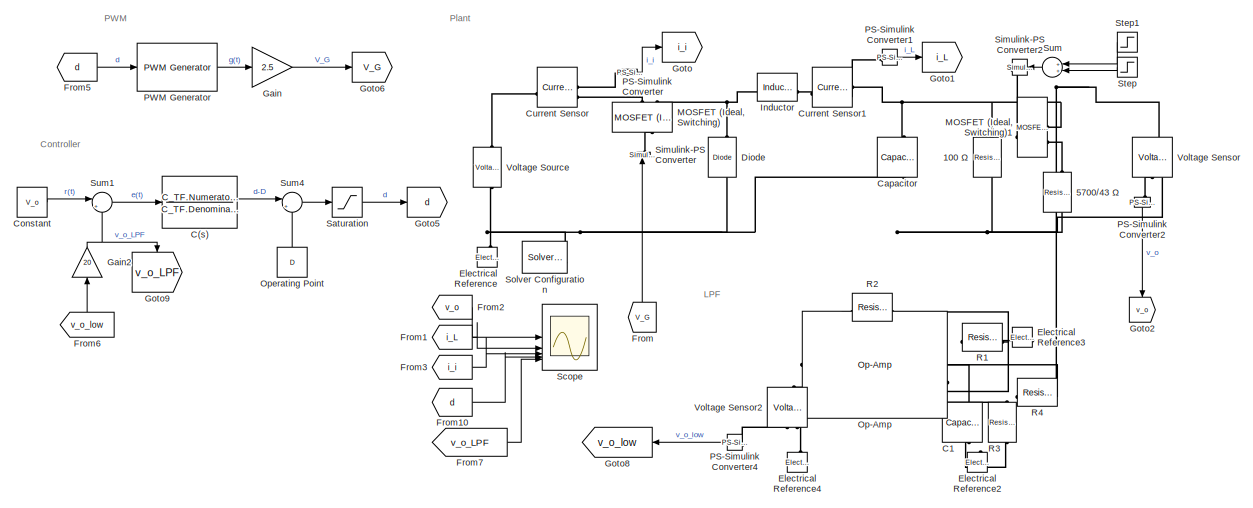
[diagram: root canvas - part 1/2, full width, top band]
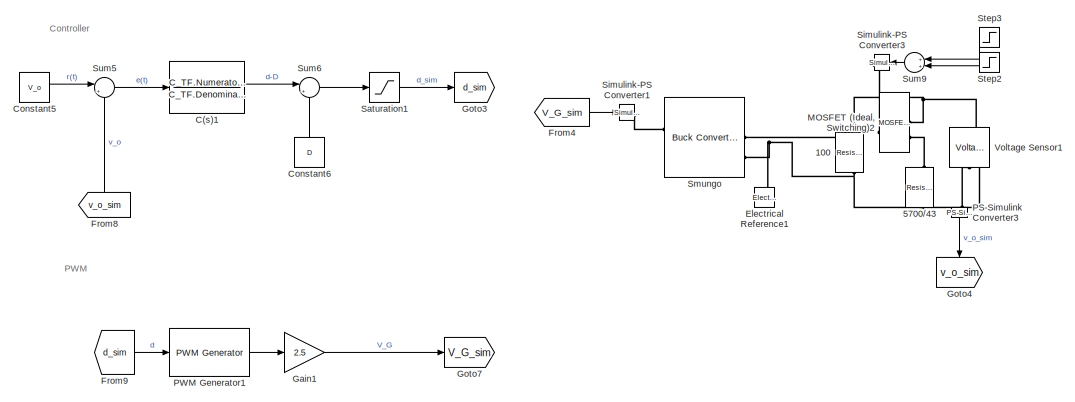
[diagram: root canvas - part 2/2, full width, bottom band]
MODEL slx_f3b75ae2d87d
KIND model
CONFIG AbsTol = auto
CONFIG EnableMultiTasking = off
CONFIG FixedStep = auto
CONFIG MaxStep = T_sw/100
CONFIG MinStep = auto
CONFIG RelTol = 1e-3
CONFIG SampleTimeConstraint = Unconstrained
CONFIG SolverName = VariableStepAuto
CONFIG StartTime = 0.0
CONFIG StopTime = 1.2
BLOCK [Reference] 100  REF=fl_lib/Electrical/Electrical Elements/Resistor
  Commented = on
  NameLocation = left
  SourceBlock = fl_lib/Electrical/Electrical Elements/Resistor
  SourceType = Resistor
BLOCK [Reference] 100 Ω  REF=fl_lib/Electrical/Electrical Elements/Resistor
  NameLocation = left
  SourceBlock = fl_lib/Electrical/Electrical Elements/Resistor
  SourceType = Resistor
BLOCK [Reference] 5700//43  REF=fl_lib/Electrical/Electrical Elements/Resistor
  Commented = on
  NameLocation = left
  SourceBlock = fl_lib/Electrical/Electrical Elements/Resistor
  SourceType = Resistor
BLOCK [Reference] 5700//43 Ω  REF=fl_lib/Electrical/Electrical Elements/Resistor
  NameLocation = left
  SourceBlock = fl_lib/Electrical/Electrical Elements/Resistor
  SourceType = Resistor
BLOCK [TransferFcn] C(s)
  Denominator = C_TF.Denominator{1}
  Numerator = C_TF.Numerator{1}
BLOCK [TransferFcn] C(s)1
  Commented = on
  Denominator = C_TF.Denominator{1}
  Numerator = C_TF.Numerator{1}
BLOCK [Reference] C1  REF=fl_lib/Electrical/Electrical Elements/Capacitor
  NameLocation = left
  SourceBlock = fl_lib/Electrical/Electrical Elements/Capacitor
  SourceType = Capacitor
BLOCK [Reference] Capacitor  REF=fl_lib/Electrical/Electrical Elements/Capacitor
  NameLocation = left
  SourceBlock = fl_lib/Electrical/Electrical Elements/Capacitor
  SourceType = Capacitor
BLOCK [Constant] Constant
  Value = V_o
BLOCK [Constant] Constant5
  Commented = on
  Value = V_o
BLOCK [Constant] Constant6
  Commented = on
  NameLocation = right
  Value = D
BLOCK [Reference] Current Sensor  REF=fl_lib/Electrical/Electrical Sensors/Current Sensor
  SourceBlock = fl_lib/Electrical/Electrical Sensors/Current Sensor
  SourceType = Current Sensor
BLOCK [Reference] Current Sensor1  REF=fl_lib/Electrical/Electrical Sensors/Current Sensor
  SourceBlock = fl_lib/Electrical/Electrical Sensors/Current Sensor
  SourceType = Current Sensor
BLOCK [Reference] Diode  REF=ee_lib/Semiconductors &
Converters/Diode
  NameLocation = right
  SourceBlock = ee_lib/Semiconductors &\nConverters/Diode
  SourceType = Diode
BLOCK [Reference] Electrical Reference  REF=fl_lib/Electrical/Electrical Elements/Electrical Reference
  NameLocation = right
  SourceBlock = fl_lib/Electrical/Electrical Elements/Electrical Reference
  SourceType = Electrical Reference
BLOCK [Reference] Electrical Reference1  REF=fl_lib/Electrical/Electrical Elements/Electrical Reference
  Commented = on
  NameLocation = right
  SourceBlock = fl_lib/Electrical/Electrical Elements/Electrical Reference
  SourceType = Electrical Reference
BLOCK [Reference] Electrical Reference2  REF=fl_lib/Electrical/Electrical Elements/Electrical Reference
  NameLocation = right
  SourceBlock = fl_lib/Electrical/Electrical Elements/Electrical Reference
  SourceType = Electrical Reference
BLOCK [Reference] Electrical Reference3  REF=fl_lib/Electrical/Electrical Elements/Electrical Reference
  NameLocation = top
  SourceBlock = fl_lib/Electrical/Electrical Elements/Electrical Reference
  SourceType = Electrical Reference
BLOCK [Reference] Electrical Reference4  REF=fl_lib/Electrical/Electrical Elements/Electrical Reference
  NameLocation = right
  SourceBlock = fl_lib/Electrical/Electrical Elements/Electrical Reference
  SourceType = Electrical Reference
BLOCK [From] From
  GotoTag = V_G
  NameLocation = right
BLOCK [From] From1
  GotoTag = i_L
BLOCK [From] From10
  GotoTag = d
BLOCK [From] From2
  GotoTag = v_o
BLOCK [From] From3
  GotoTag = i_i
BLOCK [From] From4
  Commented = on
  GotoTag = V_G_sim
BLOCK [From] From5
  GotoTag = d
BLOCK [From] From6
  GotoTag = v_o_low
  NameLocation = right
BLOCK [From] From7
  GotoTag = v_o_LPF
BLOCK [From] From8
  Commented = on
  GotoTag = v_o_sim
  NameLocation = right
BLOCK [From] From9
  Commented = on
  GotoTag = d_sim
BLOCK [Gain] Gain
  Gain = 2.5
BLOCK [Gain] Gain1
  Commented = on
  Gain = 2.5
BLOCK [Gain] Gain2
  Gain = 20
  NameLocation = right
BLOCK [Goto] Goto
  GotoTag = i_i
BLOCK [Goto] Goto1
  GotoTag = i_L
BLOCK [Goto] Goto2
  GotoTag = v_o
  NameLocation = left
BLOCK [Goto] Goto3
  Commented = on
  GotoTag = d_sim
BLOCK [Goto] Goto4
  Commented = on
  GotoTag = v_o_sim
  NameLocation = left
BLOCK [Goto] Goto5
  GotoTag = d
BLOCK [Goto] Goto6
  GotoTag = V_G
BLOCK [Goto] Goto7
  Commented = on
  GotoTag = V_G_sim
BLOCK [Goto] Goto8
  GotoTag = v_o_low
  NameLocation = top
BLOCK [Goto] Goto9
  GotoTag = v_o_LPF
  NameLocation = left
BLOCK [Reference] Inductor  REF=fl_lib/Electrical/Electrical Elements/Inductor
  SourceBlock = fl_lib/Electrical/Electrical Elements/Inductor
  SourceType = Inductor
BLOCK [Reference] MOSFET (Ideal, Switching)  REF=ee_lib/Semiconductors &
Converters/MOSFET
(Ideal,
Switching)
  NameLocation = right
  SourceBlock = ee_lib/Semiconductors &\nConverters/MOSFET\n(Ideal,\nSwitching)
  SourceType = MOSFET\n(Ideal,\nSwitching)
BLOCK [Reference] MOSFET (Ideal, Switching)1  REF=ee_lib/Semiconductors &
Converters/MOSFET
(Ideal,
Switching)
  SourceBlock = ee_lib/Semiconductors &\nConverters/MOSFET\n(Ideal,\nSwitching)
  SourceType = MOSFET\n(Ideal,\nSwitching)
BLOCK [Reference] MOSFET (Ideal, Switching)2  REF=ee_lib/Semiconductors &
Converters/MOSFET
(Ideal,
Switching)
  Commented = on
  SourceBlock = ee_lib/Semiconductors &\nConverters/MOSFET\n(Ideal,\nSwitching)
  SourceType = MOSFET\n(Ideal,\nSwitching)
BLOCK [Reference] Op-Amp  REF=fl_lib/Electrical/Electrical Elements/Op-Amp
  NameLocation = top
  SourceBlock = fl_lib/Electrical/Electrical Elements/Op-Amp
  SourceType = Op-Amp
BLOCK [Constant] Operating Point
  NameLocation = right
  Value = D
BLOCK [Reference] PS-Simulink Converter  REF=nesl_utility/PS-Simulink
Converter
  SourceBlock = nesl_utility/PS-Simulink\nConverter
  SourceType = PS-Simulink\nConverter
BLOCK [Reference] PS-Simulink Converter1  REF=nesl_utility/PS-Simulink
Converter
  SourceBlock = nesl_utility/PS-Simulink\nConverter
  SourceType = PS-Simulink\nConverter
BLOCK [Reference] PS-Simulink Converter2  REF=nesl_utility/PS-Simulink
Converter
  NameLocation = left
  SourceBlock = nesl_utility/PS-Simulink\nConverter
  SourceType = PS-Simulink\nConverter
BLOCK [Reference] PS-Simulink Converter3  REF=nesl_utility/PS-Simulink
Converter
  Commented = on
  NameLocation = left
  SourceBlock = nesl_utility/PS-Simulink\nConverter
  SourceType = PS-Simulink\nConverter
BLOCK [Reference] PS-Simulink Converter4  REF=nesl_utility/PS-Simulink
Converter
  NameLocation = top
  SourceBlock = nesl_utility/PS-Simulink\nConverter
  SourceType = PS-Simulink\nConverter
BLOCK [Reference] PWM Generator  REF=eePwmGenerator/PWM Generator
  LibrarySourceBlock = ee_sl_lib/Pulse Width\nModulation/PWM Generator
  SourceBlock = eePwmGenerator/PWM Generator
  SourceType = PWM Generator
BLOCK [Reference] PWM Generator1  REF=eePwmGenerator/PWM Generator
  Commented = on
  LibrarySourceBlock = ee_sl_lib/Pulse Width\nModulation/PWM Generator
  SourceBlock = eePwmGenerator/PWM Generator
  SourceType = PWM Generator
BLOCK [Reference] R1  REF=fl_lib/Electrical/Electrical Elements/Resistor
  NameLocation = top
  SourceBlock = fl_lib/Electrical/Electrical Elements/Resistor
  SourceType = Resistor
BLOCK [Reference] R2  REF=fl_lib/Electrical/Electrical Elements/Resistor
  SourceBlock = fl_lib/Electrical/Electrical Elements/Resistor
  SourceType = Resistor
BLOCK [Reference] R3  REF=fl_lib/Electrical/Electrical Elements/Resistor
  NameLocation = right
  SourceBlock = fl_lib/Electrical/Electrical Elements/Resistor
  SourceType = Resistor
BLOCK [Reference] R4  REF=fl_lib/Electrical/Electrical Elements/Resistor
  NameLocation = top
  SourceBlock = fl_lib/Electrical/Electrical Elements/Resistor
  SourceType = Resistor
BLOCK [Saturate] Saturation
  LowerLimit = 0
  UpperLimit = 1
BLOCK [Saturate] Saturation1
  Commented = on
  LowerLimit = 0
  UpperLimit = 1
BLOCK [Scope] Scope
  Floating = off
  NumInputPorts = 5
  ScopeSpecificationString = Simulink.scopes.TimeScopeBlockCfg('CurrentConfiguration', extmgr.ConfigurationSet(extmgr.Configuration('Core','General UI',true),extmgr.Configuration('Core','Source UI',true),extmgr.Configuration('Sources','WiredSimulink',true,'DataLogging',true),extmgr.Configuration('Visuals','Time Domain',true,'SerializedDisplays',{struct('MinYLimReal','-4.94801','MaxYLimReal','44.53211','YLabelReal','','MinYLim...<+2139ch>
BLOCK [Reference] Simulink-PS Converter  REF=nesl_utility/Simulink-PS
Converter
  NameLocation = right
  SourceBlock = nesl_utility/Simulink-PS\nConverter
  SourceType = Simulink-PS\nConverter
BLOCK [Reference] Simulink-PS Converter1  REF=nesl_utility/Simulink-PS
Converter
  Commented = on
  SourceBlock = nesl_utility/Simulink-PS\nConverter
  SourceType = Simulink-PS\nConverter
BLOCK [Reference] Simulink-PS Converter2  REF=nesl_utility/Simulink-PS
Converter
  NameLocation = top
  SourceBlock = nesl_utility/Simulink-PS\nConverter
  SourceType = Simulink-PS\nConverter
BLOCK [Reference] Simulink-PS Converter3  REF=nesl_utility/Simulink-PS
Converter
  Commented = on
  NameLocation = top
  SourceBlock = nesl_utility/Simulink-PS\nConverter
  SourceType = Simulink-PS\nConverter
BLOCK [Reference] Smungo  REF=ee_lib/Semiconductors &
Converters/Converters/Buck Converter
  Commented = on
  SourceBlock = ee_lib/Semiconductors &\nConverters/Converters/Buck Converter
  SourceType = Buck Converter
BLOCK [Reference] Solver Configuration  REF=nesl_utility/Solver
Configuration
  SourceBlock = nesl_utility/Solver\nConfiguration
  SourceType = Solver\nConfiguration
BLOCK [Step] Step
  After = 0
  Before = 3
  NameLocation = top
  SampleTime = 0
  Time = 0.4
BLOCK [Step] Step1
  After = 3
  NameLocation = top
  SampleTime = 0
  Time = 0.7
BLOCK [Step] Step2
  After = 0
  Before = 3
  Commented = on
  NameLocation = top
  SampleTime = 0
  Time = 0.4
BLOCK [Step] Step3
  After = 3
  Commented = on
  NameLocation = top
  SampleTime = 0
  Time = 0.7
BLOCK [Sum] Sum
  Inputs = ++|
  NameLocation = top
BLOCK [Sum] Sum1
  Inputs = |+-
BLOCK [Sum] Sum4
  Inputs = |++
BLOCK [Sum] Sum5
  Commented = on
  Inputs = |+-
BLOCK [Sum] Sum6
  Commented = on
  Inputs = |++
BLOCK [Sum] Sum9
  Commented = on
  Inputs = ++|
  NameLocation = top
BLOCK [Reference] Voltage Sensor  REF=fl_lib/Electrical/Electrical Sensors/Voltage Sensor
  NameLocation = right
  SourceBlock = fl_lib/Electrical/Electrical Sensors/Voltage Sensor
  SourceType = Voltage Sensor
BLOCK [Reference] Voltage Sensor1  REF=fl_lib/Electrical/Electrical Sensors/Voltage Sensor
  Commented = on
  NameLocation = right
  SourceBlock = fl_lib/Electrical/Electrical Sensors/Voltage Sensor
  SourceType = Voltage Sensor
BLOCK [Reference] Voltage Sensor2  REF=fl_lib/Electrical/Electrical Sensors/Voltage Sensor
  NameLocation = right
  SourceBlock = fl_lib/Electrical/Electrical Sensors/Voltage Sensor
  SourceType = Voltage Sensor
BLOCK [Reference] Voltage Source  REF=ee_lib/Sources/Voltage Source
  NameLocation = right
  SourceBlock = ee_lib/Sources/Voltage Source
  SourceType = Voltage Source
ANNOTATION (root): Controller
ANNOTATION (root): LPF
ANNOTATION (root): PWM
ANNOTATION (root): Plant
LINE C(s)1:1 -> Sum6:1
LINE C(s):1 -> Sum4:1
LINE Constant5:1 -> Sum5:1
LINE Constant6:1 -> Sum6:2
LINE Constant:1 -> Sum1:1
LINE From10:1 -> Scope:4
LINE From1:1 -> Scope:2
LINE From2:1 -> Scope:1
LINE From3:1 -> Scope:3
LINE From4:1 -> Simulink-PS Converter1:1
LINE From5:1 -> PWM Generator:1
LINE From6:1 -> Gain2:1
LINE From7:1 -> Scope:5
LINE From8:1 -> Sum5:2
LINE From9:1 -> PWM Generator1:1
LINE From:1 -> Simulink-PS Converter:1
LINE Gain1:1 -> Goto7:1
NET Gain2:1 -> Goto9:1, Sum1:2
LINE Gain:1 -> Goto6:1
LINE Operating Point:1 -> Sum4:2
LINE PS-Simulink Converter1:1 -> Goto1:1
LINE PS-Simulink Converter2:1 -> Goto2:1
LINE PS-Simulink Converter3:1 -> Goto4:1
LINE PS-Simulink Converter4:1 -> Goto8:1
LINE PS-Simulink Converter:1 -> Goto:1
LINE PWM Generator1:1 -> Gain1:1
LINE PWM Generator:1 -> Gain:1
LINE Saturation1:1 -> Goto3:1
LINE Saturation:1 -> Goto5:1
LINE Step1:1 -> Sum:1
LINE Step2:1 -> Sum9:2
LINE Step3:1 -> Sum9:1
LINE Step:1 -> Sum:2
LINE Sum1:1 -> C(s):1
LINE Sum4:1 -> Saturation:1
LINE Sum5:1 -> C(s)1:1
LINE Sum6:1 -> Saturation1:1
LINE Sum9:1 -> Simulink-PS Converter3:1
LINE Sum:1 -> Simulink-PS Converter2:1
PNET net1: 100 Ω:LConn1 -- Capacitor:LConn1 -- Current Sensor1:RConn2 -- MOSFET (Ideal, Switching)1:RConn1 -- R4:LConn1 -- Voltage Sensor:LConn1
PNET net2: 100 Ω:RConn1 -- 5700//43 Ω:RConn1 -- Capacitor:RConn1 -- Diode:LConn1 -- Electrical Reference:LConn1 -- Solver Configuration:RConn1 -- Voltage Sensor:RConn2 -- Voltage Source:RConn1
PNET net3: 100:LConn1 -- MOSFET (Ideal, Switching)2:RConn1 -- Smungo:RConn1 -- Voltage Sensor1:LConn1
PNET net4: 100:RConn1 -- 5700//43:RConn1 -- Electrical Reference1:LConn1 -- Smungo:RConn2 -- Voltage Sensor1:RConn2
PLINE 5700//43 Ω:LConn1 -- MOSFET (Ideal, Switching)1:RConn2
PLINE 5700//43:LConn1 -- MOSFET (Ideal, Switching)2:RConn2
PNET net5: C1:LConn1 -- Op-Amp:LConn1 -- R3:LConn1 -- R4:RConn1
PNET net6: C1:RConn1 -- Electrical Reference2:LConn1 -- R3:RConn1
PLINE Current Sensor1:LConn1 -- Inductor:RConn1
PLINE Current Sensor1:RConn1 -- PS-Simulink Converter1:LConn1
PLINE Current Sensor:LConn1 -- Voltage Source:LConn1
PLINE Current Sensor:RConn1 -- PS-Simulink Converter:LConn1
PLINE Current Sensor:RConn2 -- MOSFET (Ideal, Switching):RConn1
PNET net7: Diode:RConn1 -- Inductor:LConn1 -- MOSFET (Ideal, Switching):RConn2
PLINE Electrical Reference3:LConn1 -- R1:LConn1
PLINE Electrical Reference4:LConn1 -- Voltage Sensor2:RConn2
PLINE MOSFET (Ideal, Switching)1:LConn1 -- Simulink-PS Converter2:RConn1
PLINE MOSFET (Ideal, Switching)2:LConn1 -- Simulink-PS Converter3:RConn1
PLINE MOSFET (Ideal, Switching):LConn1 -- Simulink-PS Converter:RConn1
PNET net8: Op-Amp:LConn2 -- R1:RConn1 -- R2:LConn1
PNET net9: Op-Amp:RConn1 -- R2:RConn1 -- Voltage Sensor2:LConn1
PLINE PS-Simulink Converter2:LConn1 -- Voltage Sensor:RConn1
PLINE PS-Simulink Converter3:LConn1 -- Voltage Sensor1:RConn1
PLINE PS-Simulink Converter4:LConn1 -- Voltage Sensor2:RConn1
PLINE Simulink-PS Converter1:RConn1 -- Smungo:LConn1
note: NET lines group one-source signal fan-out (src -> all destinations, sorted); 1:1 wires keep LINE; PNET lines group multi-terminal physical nets as a canonical sorted terminal list (undirected conserving connections); 2-terminal nets keep the pairwise PLINE form
